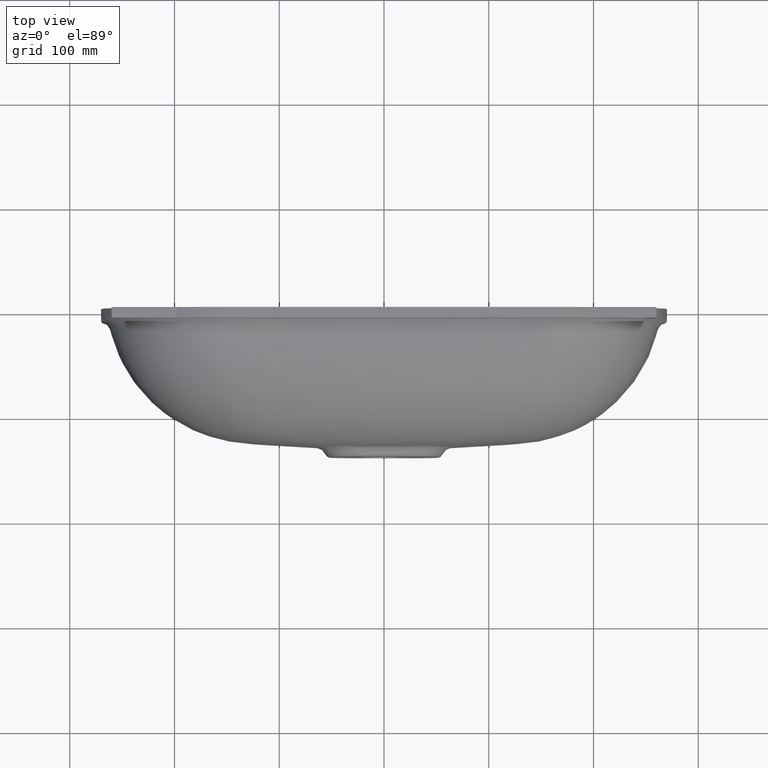
[diagram: clean part render]
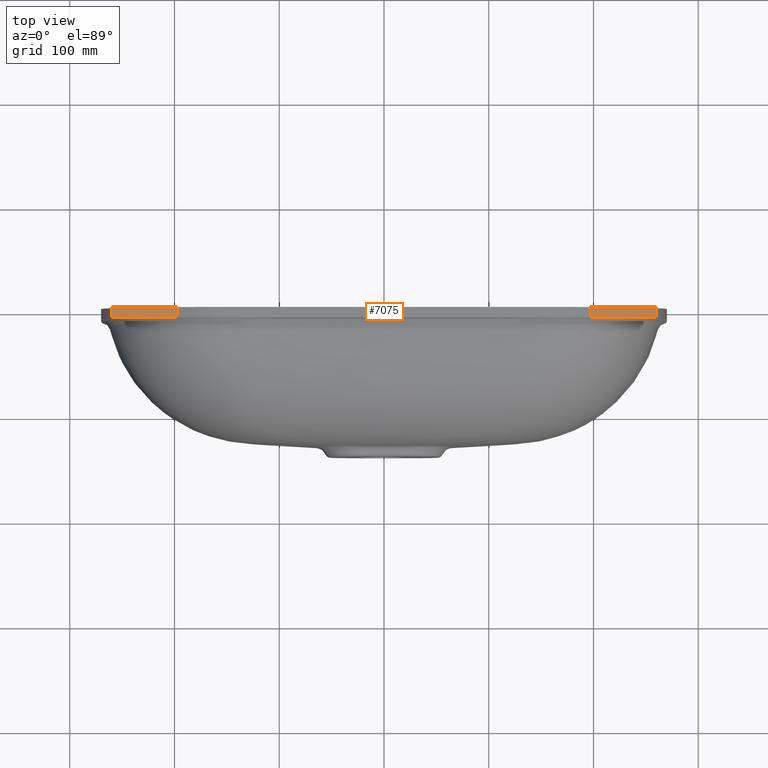
[diagram: same view with one face highlighted and labeled with its STEP entity id]
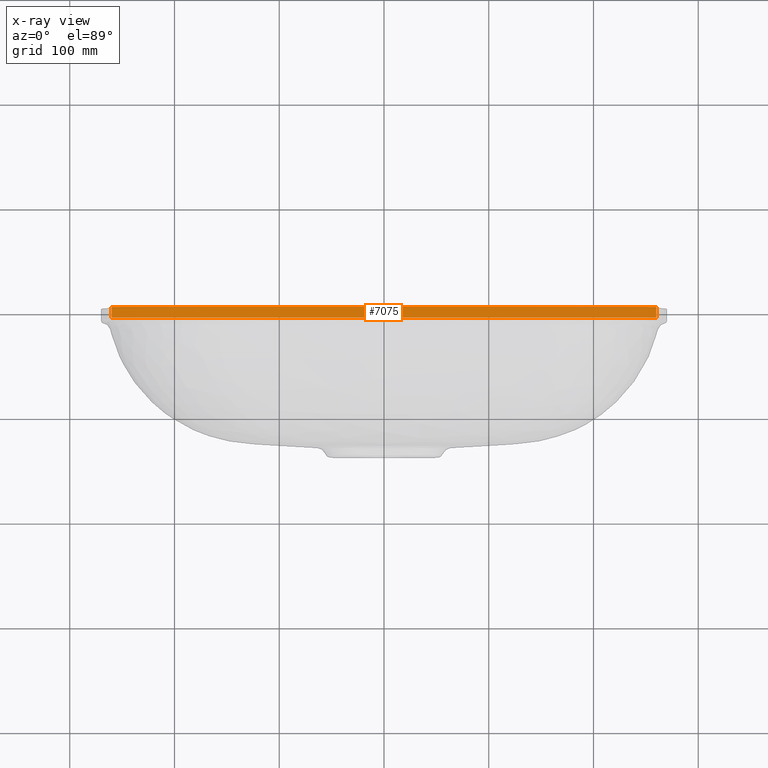
[diagram: x-ray of the same camera — body ghosted, the highlighted face saturated]
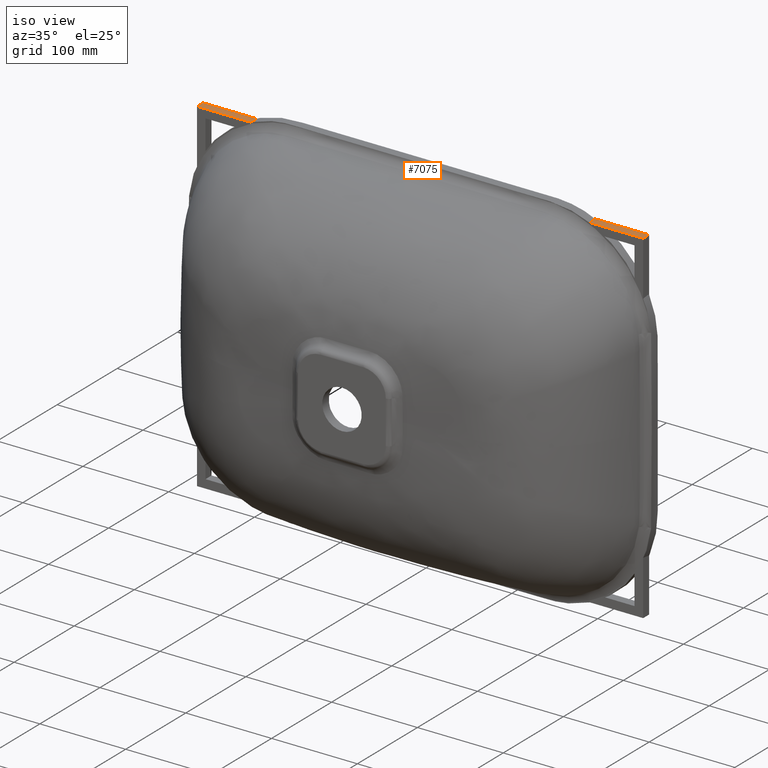
[diagram: same view with one face highlighted and labeled with its STEP entity id]
A machine part, top view. The second image highlights one B-rep face of the part: STEP entity #7075.
The next image is the same camera in x-ray: the body ghosted, the highlighted face saturated — about 0% of this face is hidden behind the body in this view.
A second angle (iso view) of the same face is appended — the face is thin or edge-on in the first view.
In plain terms, the highlighted planar face has unit normal (0, 0, 1).
Its self-contained STEP definition (entity closure, byte-faithful):
#270 = DIRECTION ( 'NONE',  ( 1.000000000000000000, 0.0000000000000000000, -0.0000000000000000000 ) ) ;
#1060 = EDGE_CURVE ( 'NONE', #25262, #33950, #11884, .T. ) ;
#3643 = AXIS2_PLACEMENT_3D ( 'NONE', #18199, #27263, #270 ) ;
#7075 = ADVANCED_FACE ( 'NONE', ( #55398 ), #54368, .T. ) ;
#10434 = ORIENTED_EDGE ( 'NONE', *, *, #20200, .T. ) ;
#11147 = VECTOR ( 'NONE', #43685, 1000.000000000000000 ) ;
#11884 = LINE ( 'NONE', #34571, #11147 ) ;
#12498 = ORIENTED_EDGE ( 'NONE', *, *, #31587, .F. ) ;
#13179 = ORIENTED_EDGE ( 'NONE', *, *, #1060, .F. ) ;
#13671 = LINE ( 'NONE', #14067, #17917 ) ;
#14067 = CARTESIAN_POINT ( 'NONE',  ( -259.9999999999999400, 0.0000000000000000000, 200.0000000000000900 ) ) ;
#16761 = CARTESIAN_POINT ( 'NONE',  ( -259.9999999999999400, -10.00000000000000000, 200.0000000000000900 ) ) ;
#17917 = VECTOR ( 'NONE', #31991, 1000.000000000000000 ) ;
#18199 = CARTESIAN_POINT ( 'NONE',  ( -259.9999999999999400, -10.00000000000000000, 200.0000000000000900 ) ) ;
#18297 = CARTESIAN_POINT ( 'NONE',  ( 260.0000000000002300, -10.00000000000000000, 200.0000000000000900 ) ) ;
#20200 = EDGE_CURVE ( 'NONE', #45672, #44276, #47965, .T. ) ;
#20303 = CARTESIAN_POINT ( 'NONE',  ( 260.0000000000002300, -10.00000000000000000, 200.0000000000000900 ) ) ;
#20818 = CARTESIAN_POINT ( 'NONE',  ( -259.9999999999999400, 0.0000000000000000000, 200.0000000000000900 ) ) ;
#21284 = DIRECTION ( 'NONE',  ( 1.000000000000000000, 0.0000000000000000000, 0.0000000000000000000 ) ) ;
#22224 = EDGE_CURVE ( 'NONE', #25262, #45672, #33373, .T. ) ;
#25262 = VERTEX_POINT ( 'NONE', #52700 ) ;
#27263 = DIRECTION ( 'NONE',  ( 0.0000000000000000000, 0.0000000000000000000, 1.000000000000000000 ) ) ;
#31587 = EDGE_CURVE ( 'NONE', #33950, #44276, #13671, .T. ) ;
#31991 = DIRECTION ( 'NONE',  ( 1.000000000000000000, 0.0000000000000000000, 0.0000000000000000000 ) ) ;
#33373 = LINE ( 'NONE', #16761, #48290 ) ;
#33950 = VERTEX_POINT ( 'NONE', #20818 ) ;
#34571 = CARTESIAN_POINT ( 'NONE',  ( -259.9999999999999400, -10.00000000000000000, 200.0000000000000900 ) ) ;
#36258 = CARTESIAN_POINT ( 'NONE',  ( 260.0000000000002300, 0.0000000000000000000, 200.0000000000000900 ) ) ;
#37143 = ORIENTED_EDGE ( 'NONE', *, *, #22224, .T. ) ;
#43637 = EDGE_LOOP ( 'NONE', ( #12498, #13179, #37143, #10434 ) ) ;
#43685 = DIRECTION ( 'NONE',  ( 0.0000000000000000000, 1.000000000000000000, 0.0000000000000000000 ) ) ;
#44276 = VERTEX_POINT ( 'NONE', #36258 ) ;
#44442 = VECTOR ( 'NONE', #51931, 1000.000000000000000 ) ;
#45672 = VERTEX_POINT ( 'NONE', #18297 ) ;
#47965 = LINE ( 'NONE', #20303, #44442 ) ;
#48290 = VECTOR ( 'NONE', #21284, 1000.000000000000000 ) ;
#51931 = DIRECTION ( 'NONE',  ( 0.0000000000000000000, 1.000000000000000000, 0.0000000000000000000 ) ) ;
#52700 = CARTESIAN_POINT ( 'NONE',  ( -259.9999999999999400, -10.00000000000000000, 200.0000000000000900 ) ) ;
#54368 = PLANE ( 'NONE',  #3643 ) ;
#55398 = FACE_OUTER_BOUND ( 'NONE', #43637, .T. ) ;